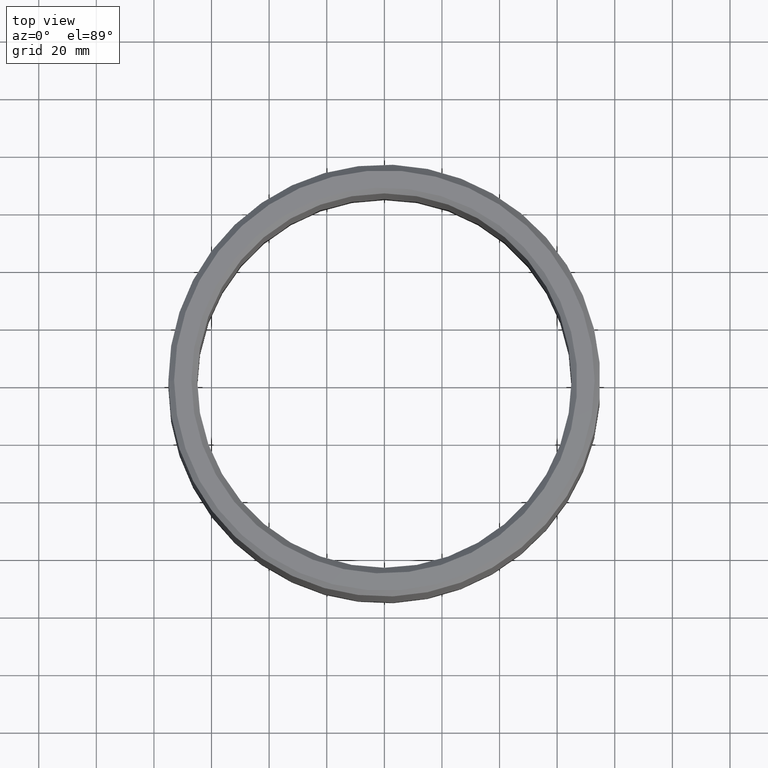
[diagram: clean part render]
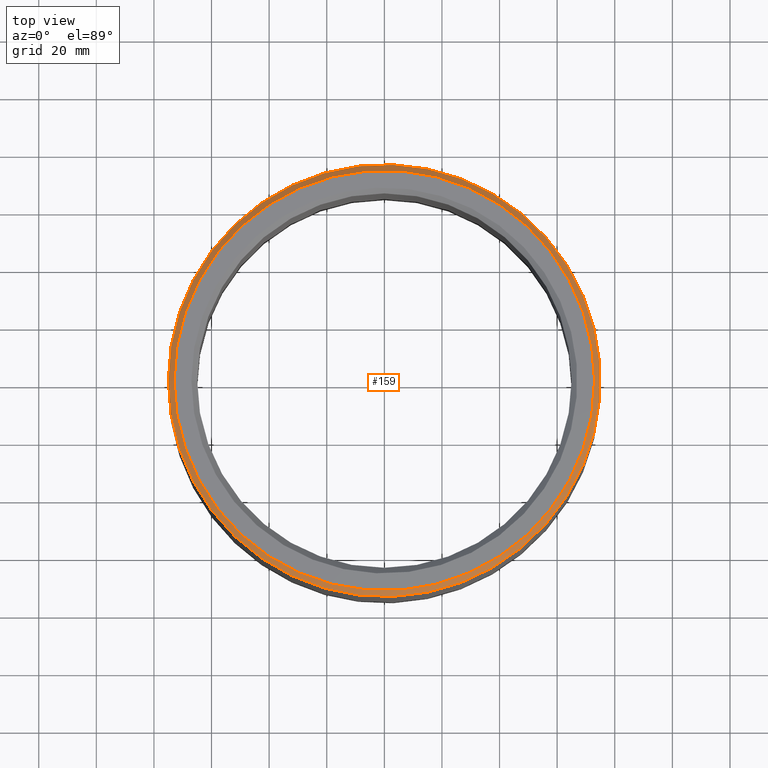
[diagram: same view with one face highlighted and labeled with its STEP entity id]
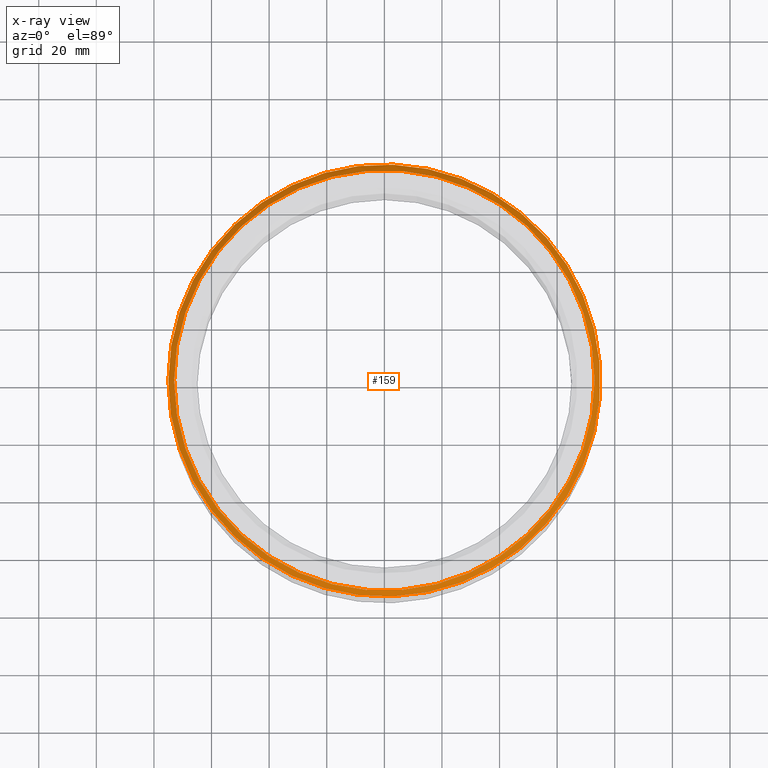
[diagram: x-ray of the same camera — body ghosted, the highlighted face saturated]
A machine part, top view. The second image highlights one B-rep face of the part: STEP entity #159.
The next image is the same camera in x-ray: the body ghosted, the highlighted face saturated — about 0% of this face is hidden behind the body in this view.
In plain terms, the highlighted conical surface has half-angle 45 deg.
Its self-contained STEP definition (entity closure, byte-faithful):
#159=ADVANCED_FACE('',(#183,#184),#185,.T.);
#183=FACE_BOUND('',#4068,.T.);
#184=FACE_OUTER_BOUND('',#4069,.T.);
#185=CONICAL_SURFACE('',#4070,0.075,0.785398163397448);
#4068=EDGE_LOOP('',(#7976));
#4069=EDGE_LOOP('',(#7977));
#4070=AXIS2_PLACEMENT_3D('',#7978,#7979,#7980);
#7976=ORIENTED_EDGE('',*,*,#8025,.T.);
#7977=ORIENTED_EDGE('',*,*,#8026,.F.);
#7978=CARTESIAN_POINT('',(0.0,6.93889390390723E-018,0.138));
#7979=DIRECTION('',(0.0,-6.12323399573677E-017,-1.0));
#7980=DIRECTION('',(0.0,1.0,-6.12323399573677E-017));
#8025=EDGE_CURVE('',#8056,#8056,#8057,.T.);
#8026=EDGE_CURVE('',#8058,#8058,#8059,.T.);
#8056=VERTEX_POINT('',#8328);
#8057=CIRCLE('',#8329,0.073);
#8058=VERTEX_POINT('',#8330);
#8059=CIRCLE('',#8331,0.075);
#8328=CARTESIAN_POINT('',(0.0,0.073,0.14));
#8329=AXIS2_PLACEMENT_3D('',#8363,#8364,#8365);
#8330=CARTESIAN_POINT('',(0.0,0.075,0.138));
#8331=AXIS2_PLACEMENT_3D('',#8366,#8367,#8368);
#8363=CARTESIAN_POINT('',(0.0,6.93889390390723E-018,0.14));
#8364=DIRECTION('',(0.0,-6.12323399573677E-017,-1.0));
#8365=DIRECTION('',(0.0,1.0,-6.12323399573677E-017));
#8366=CARTESIAN_POINT('',(0.0,6.93889390390723E-018,0.138));
#8367=DIRECTION('',(0.0,-6.12323399573677E-017,-1.0));
#8368=DIRECTION('',(0.0,1.0,-6.12323399573677E-017));